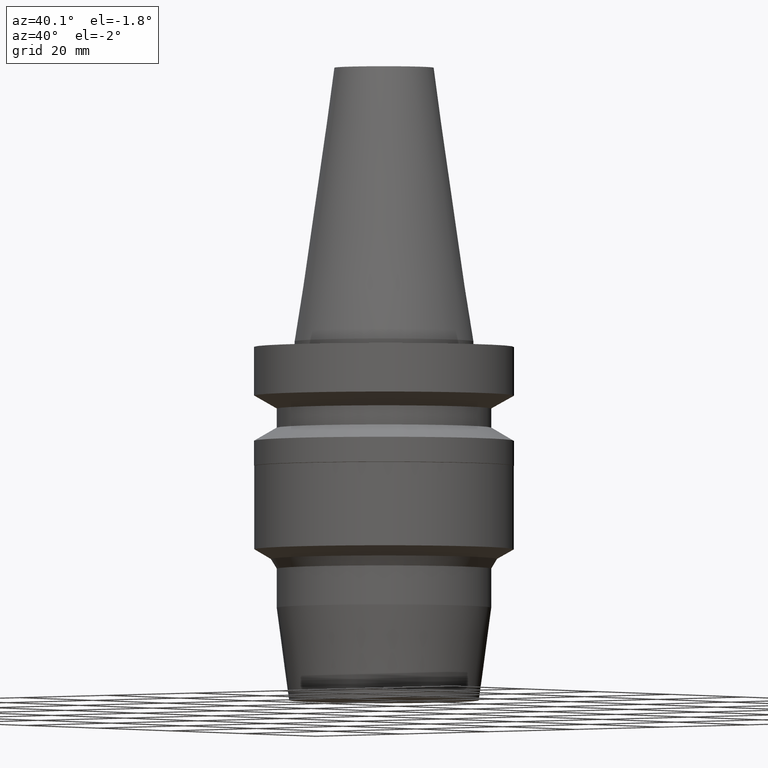
[diagram: clean part render]
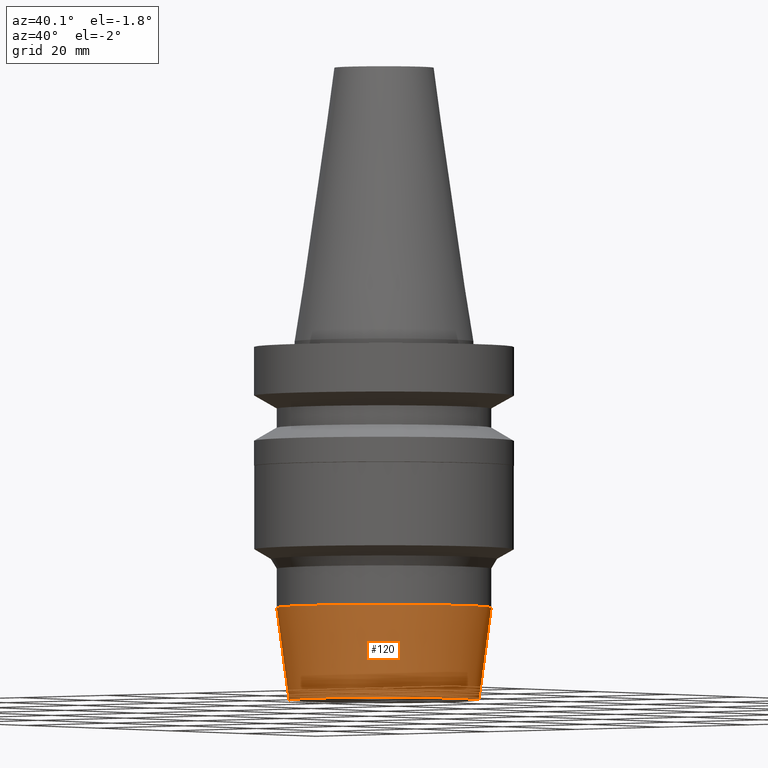
[diagram: same view with one face highlighted and labeled with its STEP entity id]
A machine part, auxiliary view. The second image highlights one B-rep face of the part: STEP entity #120.
In plain terms, the highlighted conical surface has half-angle 7.5 deg.
Its self-contained STEP definition (entity closure, byte-faithful):
#90=EDGE_CURVE('Unnamed[1]',#206,#206,#207,.T.);
#94=EDGE_CURVE('Unnamed[1]',#212,#212,#213,.T.);
#120=ADVANCED_FACE('Unnamed[1]',(#252,#253),#254,.T.);
#206=VERTEX_POINT('',#351);
#207=CIRCLE('',#352,19.0000000000043);
#212=VERTEX_POINT('',#359);
#213=CIRCLE('',#360,16.8455306051991);
#252=FACE_BOUND('',#409,.T.);
#253=FACE_BOUND('',#410,.T.);
#254=CONICAL_SURFACE('',#411,17.9227653026017,0.130899693899579);
#351=CARTESIAN_POINT('',(2.88619738001959E-015,19.0000000000043,-47.1351802336653));
#352=AXIS2_PLACEMENT_3D('',#500,#501,#502);
#359=CARTESIAN_POINT('',(3.88825358729263E-015,16.8455306051991,-63.4999999999964));
#360=AXIS2_PLACEMENT_3D('',#506,#507,#508);
#409=EDGE_LOOP('',(#551));
#410=EDGE_LOOP('',(#552));
#411=AXIS2_PLACEMENT_3D('',#553,#554,#555);
#500=CARTESIAN_POINT('',(2.88619738001959E-015,5.77239476003917E-015,-47.1351802336653));
#501=DIRECTION('',(6.12323399573677E-017,1.22464679914735E-016,-1.0));
#502=DIRECTION('',(-1.23259516440783E-032,1.0,1.22464679914735E-016));
#506=CARTESIAN_POINT('',(3.88825358729263E-015,7.77650717458525E-015,-63.4999999999964));
#507=DIRECTION('',(6.12323399573677E-017,1.22464679914735E-016,-1.0));
#508=DIRECTION('',(-1.23259516440783E-032,1.0,1.22464679914735E-016));
#551=ORIENTED_EDGE('',*,*,#94,.F.);
#552=ORIENTED_EDGE('',*,*,#90,.T.);
#553=CARTESIAN_POINT('',(3.38722548365611E-015,6.77445096731221E-015,-55.3175901168308));
#554=DIRECTION('',(-6.12323399573677E-017,-1.22464679914735E-016,1.0));
#555=DIRECTION('',(-1.23259516440783E-032,1.0,1.22464679914735E-016));